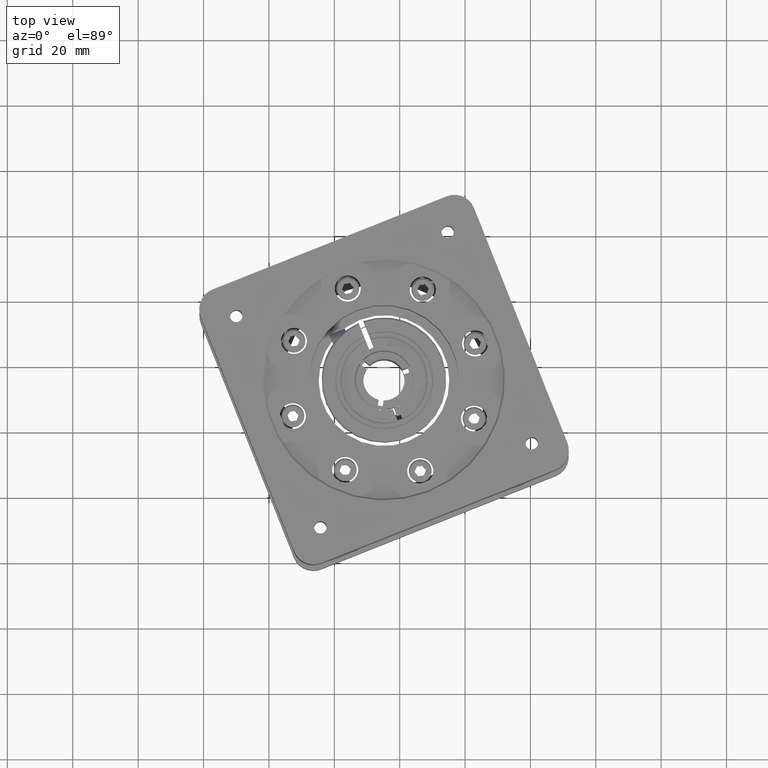
[diagram: clean part render]
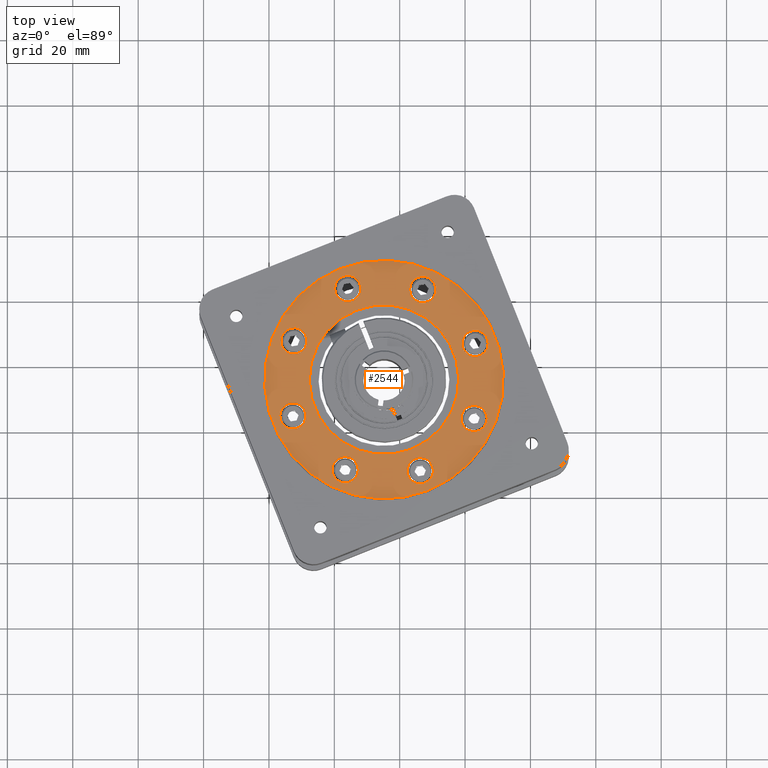
[diagram: same view with one face highlighted and labeled with its STEP entity id]
A machine part, top view. The second image highlights one B-rep face of the part: STEP entity #2544.
In plain terms, the highlighted planar face has unit normal (-0, -0, 1).
Its self-contained STEP definition (entity closure, byte-faithful):
#64 = EDGE_CURVE ( 'NONE', #227, #10395, #12125, .T. ) ;
#227 = VERTEX_POINT ( 'NONE', #8463 ) ;
#246 = AXIS2_PLACEMENT_3D ( 'NONE', #14789, #1947, #4537 ) ;
#326 = CIRCLE ( 'NONE', #3911, 4.000000000000006217 ) ;
#424 = EDGE_LOOP ( 'NONE', ( #6753, #2492 ) ) ;
#430 = CARTESIAN_POINT ( 'NONE',  ( -91.45046468432761344, 157.3930973248777434, 217.9211539304251346 ) ) ;
#552 = AXIS2_PLACEMENT_3D ( 'NONE', #9440, #13040, #1571 ) ;
#568 = FACE_BOUND ( 'NONE', #5611, .T. ) ;
#572 = EDGE_CURVE ( 'NONE', #2639, #10677, #4020, .T. ) ;
#640 = EDGE_LOOP ( 'NONE', ( #2324, #15058 ) ) ;
#655 = VERTEX_POINT ( 'NONE', #16750 ) ;
#795 = VERTEX_POINT ( 'NONE', #15965 ) ;
#1236 = AXIS2_PLACEMENT_3D ( 'NONE', #2752, #11647, #12814 ) ;
#1391 = EDGE_CURVE ( 'NONE', #10395, #227, #14289, .T. ) ;
#1456 = AXIS2_PLACEMENT_3D ( 'NONE', #2348, #7378, #11245 ) ;
#1553 = DIRECTION ( 'NONE',  ( -0.3696726045007524553, 0.9291620770789293937, 6.938893903907217334E-15 ) ) ;
#1571 = DIRECTION ( 'NONE',  ( -0.3696726045007494577, 0.9291620770789306150, 6.938893903907226800E-15 ) ) ;
#1716 = VERTEX_POINT ( 'NONE', #10949 ) ;
#1763 = DIRECTION ( 'NONE',  ( -0.3696726045007536210, 0.9291620770789288386, 6.938893903907240211E-15 ) ) ;
#1842 = CARTESIAN_POINT ( 'NONE',  ( -132.3501634337640098, 145.4258653055107402, 217.9211539304245093 ) ) ;
#1911 = VERTEX_POINT ( 'NONE', #430 ) ;
#1947 = DIRECTION ( 'NONE',  ( 1.245299915137200224E-14, 1.076898747066003711E-14, -1.000000000000000000 ) ) ;
#1968 = CARTESIAN_POINT ( 'NONE',  ( -132.6725814165737631, 122.4671231686127157, 217.9211539304242535 ) ) ;
#2034 = DIRECTION ( 'NONE',  ( -0.3696726045007524553, 0.9291620770789293937, 6.938893903907217334E-15 ) ) ;
#2324 = ORIENTED_EDGE ( 'NONE', *, *, #1391, .T. ) ;
#2348 = CARTESIAN_POINT ( 'NONE',  ( -115.8878972392286784, 161.4321636160033506, 217.9211539304248788 ) ) ;
#2379 = EDGE_LOOP ( 'NONE', ( #9900, #12763 ) ) ;
#2382 = CARTESIAN_POINT ( 'NONE',  ( -75.76658435664487001, 117.9720889934447854, 217.9211539304248788 ) ) ;
#2402 = FACE_BOUND ( 'NONE', #424, .T. ) ;
#2452 = VERTEX_POINT ( 'NONE', #16737 ) ;
#2492 = ORIENTED_EDGE ( 'NONE', *, *, #16320, .T. ) ;
#2514 = EDGE_CURVE ( 'NONE', #12157, #10826, #12515, .T. ) ;
#2518 = CIRCLE ( 'NONE', #2722, 22.86000000000001720 ) ;
#2544 = ADVANCED_FACE ( 'NONE', ( #12707, #4213, #8694, #14895, #15095, #14703, #5241, #6264, #568, #2402 ), #7820, .T. ) ;
#2639 = VERTEX_POINT ( 'NONE', #6923 ) ;
#2658 = CIRCLE ( 'NONE', #1456, 4.000000000000006217 ) ;
#2722 = AXIS2_PLACEMENT_3D ( 'NONE', #3219, #16058, #13383 ) ;
#2752 = CARTESIAN_POINT ( 'NONE',  ( -76.92285679183827085, 144.6474794386585074, 217.9211539304252199 ) ) ;
#2832 = ORIENTED_EDGE ( 'NONE', *, *, #7441, .T. ) ;
#2878 = ORIENTED_EDGE ( 'NONE', *, *, #8706, .T. ) ;
#2907 = VERTEX_POINT ( 'NONE', #2382 ) ;
#3051 = CARTESIAN_POINT ( 'NONE',  ( -116.6662831060813801, 106.0048569740774980, 217.9211539304242820 ) ) ;
#3219 = CARTESIAN_POINT ( 'NONE',  ( -104.7977191042059815, 133.5573013036354837, 217.9211539304247083 ) ) ;
#3293 = DIRECTION ( 'NONE',  ( -0.3696726045007536210, 0.9291620770789288386, 6.938893903907240211E-15 ) ) ;
#3349 = DIRECTION ( 'NONE',  ( -0.3696726045007524553, 0.9291620770789293937, 6.938893903907217334E-15 ) ) ;
#3417 = ORIENTED_EDGE ( 'NONE', *, *, #13237, .T. ) ;
#3602 = EDGE_CURVE ( 'NONE', #8655, #655, #11285, .T. ) ;
#3617 = CARTESIAN_POINT ( 'NONE',  ( -78.72396519265093673, 125.4053856100761948, 217.9211539304249357 ) ) ;
#3642 = EDGE_CURVE ( 'NONE', #10537, #795, #12076, .T. ) ;
#3911 = AXIS2_PLACEMENT_3D ( 'NONE', #12664, #8675, #11274 ) ;
#3916 = CARTESIAN_POINT ( 'NONE',  ( -93.70754096918308562, 105.6824389912677020, 217.9211539304245377 ) ) ;
#3938 = ORIENTED_EDGE ( 'NONE', *, *, #8653, .T. ) ;
#4020 = CIRCLE ( 'NONE', #16060, 4.000000000000000888 ) ;
#4098 = ORIENTED_EDGE ( 'NONE', *, *, #12728, .T. ) ;
#4201 = CARTESIAN_POINT ( 'NONE',  ( -77.24527477464792469, 121.6887373017604688, 217.9211539304249072 ) ) ;
#4205 = EDGE_CURVE ( 'NONE', #1716, #1911, #11668, .T. ) ;
#4213 = FACE_OUTER_BOUND ( 'NONE', #640, .T. ) ;
#4252 = EDGE_CURVE ( 'NONE', #10677, #2639, #14856, .T. ) ;
#4337 = AXIS2_PLACEMENT_3D ( 'NONE', #1842, #7160, #16034 ) ;
#4362 = AXIS2_PLACEMENT_3D ( 'NONE', #11082, #12520, #6040 ) ;
#4537 = DIRECTION ( 'NONE',  ( -0.3696726045007524553, 0.9291620770789293937, 6.938893903907217334E-15 ) ) ;
#4596 = AXIS2_PLACEMENT_3D ( 'NONE', #7148, #9774, #5972 ) ;
#4659 = EDGE_LOOP ( 'NONE', ( #4098, #3417 ) ) ;
#4729 = ORIENTED_EDGE ( 'NONE', *, *, #9372, .T. ) ;
#4976 = DIRECTION ( 'NONE',  ( -0.3696726045007532324, 0.9291620770789289496, 4.856618655403130666E-15 ) ) ;
#5019 = AXIS2_PLACEMENT_3D ( 'NONE', #16589, #11490, #10081 ) ;
#5102 = ORIENTED_EDGE ( 'NONE', *, *, #572, .T. ) ;
#5122 = AXIS2_PLACEMENT_3D ( 'NONE', #3051, #9523, #1763 ) ;
#5241 = FACE_BOUND ( 'NONE', #16285, .T. ) ;
#5611 = EDGE_LOOP ( 'NONE', ( #4729, #9020 ) ) ;
#5648 = CARTESIAN_POINT ( 'NONE',  ( -95.18623138718609766, 109.3990872995833996, 217.9211539304245662 ) ) ;
#5688 = EDGE_CURVE ( 'NONE', #8536, #8145, #2518, .T. ) ;
#5851 = AXIS2_PLACEMENT_3D ( 'NONE', #3916, #12955, #7530 ) ;
#5864 = AXIS2_PLACEMENT_3D ( 'NONE', #13496, #14818, #2034 ) ;
#5884 = CARTESIAN_POINT ( 'NONE',  ( -75.44416637383518776, 140.9308311303427956, 217.9211539304251914 ) ) ;
#5972 = DIRECTION ( 'NONE',  ( -0.3696726045007577843, 0.9291620770789272843, 6.938893903907253621E-15 ) ) ;
#5982 = DIRECTION ( 'NONE',  ( -0.3696726045007532324, 0.9291620770789290606, 5.321164787659085039E-15 ) ) ;
#5987 = VERTEX_POINT ( 'NONE', #6621 ) ;
#6040 = DIRECTION ( 'NONE',  ( -0.3696726045007524553, 0.9291620770789293937, 6.938893903907217334E-15 ) ) ;
#6264 = FACE_BOUND ( 'NONE', #2379, .T. ) ;
#6621 = CARTESIAN_POINT ( 'NONE',  ( -114.4092068212256663, 157.7155153076876388, 217.9211539304248504 ) ) ;
#6700 = CIRCLE ( 'NONE', #5019, 3.999999999999993339 ) ;
#6753 = ORIENTED_EDGE ( 'NONE', *, *, #4205, .T. ) ;
#6923 = CARTESIAN_POINT ( 'NONE',  ( -134.1512718345767610, 126.1837714769284418, 217.9211539304242820 ) ) ;
#6999 = CARTESIAN_POINT ( 'NONE',  ( -104.7977191042059815, 133.5573013036354837, 217.9211539304247083 ) ) ;
#7115 = EDGE_LOOP ( 'NONE', ( #2832, #14711 ) ) ;
#7148 = CARTESIAN_POINT ( 'NONE',  ( -132.6725814165737631, 122.4671231686127157, 217.9211539304242535 ) ) ;
#7160 = DIRECTION ( 'NONE',  ( 1.245299915137200224E-14, 1.076898747066003711E-14, -1.000000000000000000 ) ) ;
#7355 = CARTESIAN_POINT ( 'NONE',  ( -116.6662831060813801, 106.0048569740774980, 217.9211539304242820 ) ) ;
#7378 = DIRECTION ( 'NONE',  ( 1.245299915137200224E-14, 1.076898747066003711E-14, -1.000000000000000000 ) ) ;
#7441 = EDGE_CURVE ( 'NONE', #655, #8655, #9794, .T. ) ;
#7530 = DIRECTION ( 'NONE',  ( -0.3696726045007536210, 0.9291620770789288386, 6.938893903907240211E-15 ) ) ;
#7820 = PLANE ( 'NONE',  #14464 ) ;
#8045 = VERTEX_POINT ( 'NONE', #14056 ) ;
#8145 = VERTEX_POINT ( 'NONE', #11562 ) ;
#8463 = CARTESIAN_POINT ( 'NONE',  ( -91.30004813237223971, 99.63127096429110452, 217.9211539304245093 ) ) ;
#8536 = VERTEX_POINT ( 'NONE', #13548 ) ;
#8594 = DIRECTION ( 'NONE',  ( 1.245299915137200224E-14, 1.076898747066003711E-14, -1.000000000000000000 ) ) ;
#8653 = EDGE_CURVE ( 'NONE', #10826, #12157, #6700, .T. ) ;
#8655 = VERTEX_POINT ( 'NONE', #16471 ) ;
#8675 = DIRECTION ( 'NONE',  ( 1.245299915137200224E-14, 1.076898747066003711E-14, -1.000000000000000000 ) ) ;
#8694 = FACE_BOUND ( 'NONE', #9156, .T. ) ;
#8706 = EDGE_CURVE ( 'NONE', #795, #10537, #12545, .T. ) ;
#9020 = ORIENTED_EDGE ( 'NONE', *, *, #15389, .T. ) ;
#9139 = CIRCLE ( 'NONE', #15652, 22.86000000000001720 ) ;
#9156 = EDGE_LOOP ( 'NONE', ( #2878, #10880 ) ) ;
#9337 = CIRCLE ( 'NONE', #16068, 4.000000000000006217 ) ;
#9372 = EDGE_CURVE ( 'NONE', #2452, #5987, #2658, .T. ) ;
#9440 = CARTESIAN_POINT ( 'NONE',  ( -132.3501634337640098, 145.4258653055107402, 217.9211539304245093 ) ) ;
#9523 = DIRECTION ( 'NONE',  ( 1.245299915137200224E-14, 1.076898747066003711E-14, -1.000000000000000000 ) ) ;
#9650 = CIRCLE ( 'NONE', #4362, 4.000000000000006217 ) ;
#9749 = AXIS2_PLACEMENT_3D ( 'NONE', #6999, #15969, #12121 ) ;
#9774 = DIRECTION ( 'NONE',  ( 1.245299915137200224E-14, 1.076898747066003711E-14, -1.000000000000000000 ) ) ;
#9794 = CIRCLE ( 'NONE', #5122, 3.999999999999993339 ) ;
#9900 = ORIENTED_EDGE ( 'NONE', *, *, #16035, .T. ) ;
#9938 = DIRECTION ( 'NONE',  ( 1.245299915137200224E-14, 1.076898747066003711E-14, -1.000000000000000000 ) ) ;
#10081 = DIRECTION ( 'NONE',  ( -0.3696726045007536210, 0.9291620770789288386, 6.938893903907240211E-15 ) ) ;
#10099 = VERTEX_POINT ( 'NONE', #3617 ) ;
#10256 = AXIS2_PLACEMENT_3D ( 'NONE', #7355, #9938, #3293 ) ;
#10296 = ORIENTED_EDGE ( 'NONE', *, *, #5688, .F. ) ;
#10395 = VERTEX_POINT ( 'NONE', #15999 ) ;
#10537 = VERTEX_POINT ( 'NONE', #5884 ) ;
#10650 = EDGE_LOOP ( 'NONE', ( #10296, #11014 ) ) ;
#10677 = VERTEX_POINT ( 'NONE', #12929 ) ;
#10826 = VERTEX_POINT ( 'NONE', #5648 ) ;
#10863 = ORIENTED_EDGE ( 'NONE', *, *, #4252, .T. ) ;
#10880 = ORIENTED_EDGE ( 'NONE', *, *, #3642, .T. ) ;
#10949 = CARTESIAN_POINT ( 'NONE',  ( -94.40784552033366595, 164.8263939415091670, 217.9211539304251914 ) ) ;
#11006 = CARTESIAN_POINT ( 'NONE',  ( -76.92285679183827085, 144.6474794386585074, 217.9211539304252199 ) ) ;
#11014 = ORIENTED_EDGE ( 'NONE', *, *, #13023, .F. ) ;
#11082 = CARTESIAN_POINT ( 'NONE',  ( -92.92915510233065390, 161.1097456331934268, 217.9211539304251630 ) ) ;
#11117 = AXIS2_PLACEMENT_3D ( 'NONE', #11006, #13775, #3349 ) ;
#11245 = DIRECTION ( 'NONE',  ( -0.3696726045007524553, 0.9291620770789293937, 6.938893903907217334E-15 ) ) ;
#11274 = DIRECTION ( 'NONE',  ( -0.3696726045007524553, 0.9291620770789293937, 6.938893903907217334E-15 ) ) ;
#11285 = CIRCLE ( 'NONE', #10256, 3.999999999999993339 ) ;
#11490 = DIRECTION ( 'NONE',  ( 1.245299915137200224E-14, 1.076898747066003711E-14, -1.000000000000000000 ) ) ;
#11562 = CARTESIAN_POINT ( 'NONE',  ( -96.34700336531867038, 112.3166562216112112, 217.9211539304245946 ) ) ;
#11647 = DIRECTION ( 'NONE',  ( 1.245299915137200224E-14, 1.076898747066003711E-14, -1.000000000000000000 ) ) ;
#11668 = CIRCLE ( 'NONE', #246, 4.000000000000006217 ) ;
#11729 = CARTESIAN_POINT ( 'NONE',  ( -104.7977191042059815, 133.5573013036354837, 217.9211539304247083 ) ) ;
#11841 = DIRECTION ( 'NONE',  ( 1.245299915137200224E-14, 1.076898747066003711E-14, -1.000000000000000000 ) ) ;
#12051 = CIRCLE ( 'NONE', #552, 4.000000000000000888 ) ;
#12076 = CIRCLE ( 'NONE', #11117, 4.000000000000006217 ) ;
#12121 = DIRECTION ( 'NONE',  ( -0.3696726045007532324, 0.9291620770789290606, 5.321164787659085039E-15 ) ) ;
#12125 = CIRCLE ( 'NONE', #9749, 36.51250000000000995 ) ;
#12135 = CIRCLE ( 'NONE', #5864, 4.000000000000006217 ) ;
#12157 = VERTEX_POINT ( 'NONE', #14041 ) ;
#12515 = CIRCLE ( 'NONE', #5851, 3.999999999999993339 ) ;
#12520 = DIRECTION ( 'NONE',  ( 1.245299915137200224E-14, 1.076898747066003711E-14, -1.000000000000000000 ) ) ;
#12545 = CIRCLE ( 'NONE', #1236, 4.000000000000006217 ) ;
#12664 = CARTESIAN_POINT ( 'NONE',  ( -115.8878972392286784, 161.4321636160033506, 217.9211539304248788 ) ) ;
#12707 = FACE_BOUND ( 'NONE', #10650, .T. ) ;
#12728 = EDGE_CURVE ( 'NONE', #10099, #2907, #9337, .T. ) ;
#12763 = ORIENTED_EDGE ( 'NONE', *, *, #14621, .T. ) ;
#12814 = DIRECTION ( 'NONE',  ( -0.3696726045007524553, 0.9291620770789293937, 6.938893903907217334E-15 ) ) ;
#12833 = DIRECTION ( 'NONE',  ( -1.245299915137200224E-14, -1.076898747066003711E-14, 1.000000000000000000 ) ) ;
#12929 = CARTESIAN_POINT ( 'NONE',  ( -131.1938909985707653, 118.7504748602969897, 217.9211539304242251 ) ) ;
#12955 = DIRECTION ( 'NONE',  ( 1.245299915137200224E-14, 1.076898747066003711E-14, -1.000000000000000000 ) ) ;
#13023 = EDGE_CURVE ( 'NONE', #8145, #8536, #9139, .T. ) ;
#13040 = DIRECTION ( 'NONE',  ( 1.245299915137200224E-14, 1.076898747066003711E-14, -1.000000000000000000 ) ) ;
#13237 = EDGE_CURVE ( 'NONE', #2907, #10099, #12135, .T. ) ;
#13383 = DIRECTION ( 'NONE',  ( -0.3696726045007532324, 0.9291620770789289496, 4.856618655403130666E-15 ) ) ;
#13496 = CARTESIAN_POINT ( 'NONE',  ( -77.24527477464792469, 121.6887373017604688, 217.9211539304249072 ) ) ;
#13548 = CARTESIAN_POINT ( 'NONE',  ( -113.2484348430932073, 154.7979463856598272, 217.9211539304248220 ) ) ;
#13626 = ORIENTED_EDGE ( 'NONE', *, *, #2514, .T. ) ;
#13699 = DIRECTION ( 'NONE',  ( -0.3696726045007494577, 0.9291620770789306150, 6.938893903907226800E-15 ) ) ;
#13775 = DIRECTION ( 'NONE',  ( 1.245299915137200224E-14, 1.076898747066003711E-14, -1.000000000000000000 ) ) ;
#13999 = EDGE_LOOP ( 'NONE', ( #3938, #13626 ) ) ;
#14041 = CARTESIAN_POINT ( 'NONE',  ( -92.22885055117997410, 101.9657906829520329, 217.9211539304245093 ) ) ;
#14056 = CARTESIAN_POINT ( 'NONE',  ( -133.8288538517670077, 149.1425136138264520, 217.9211539304245377 ) ) ;
#14106 = CARTESIAN_POINT ( 'NONE',  ( -104.7977191042059815, 133.5573013036354837, 217.9211539304247083 ) ) ;
#14239 = DIRECTION ( 'NONE',  ( -1.245299915137308929E-14, -1.076898747065730449E-14, 1.000000000000000000 ) ) ;
#14250 = AXIS2_PLACEMENT_3D ( 'NONE', #16342, #15117, #5982 ) ;
#14288 = DIRECTION ( 'NONE',  ( -0.3696726045007531769, 0.9291620770789291717, 5.402602136139144610E-15 ) ) ;
#14289 = CIRCLE ( 'NONE', #14250, 36.51250000000000995 ) ;
#14464 = AXIS2_PLACEMENT_3D ( 'NONE', #11729, #14239, #14288 ) ;
#14487 = CIRCLE ( 'NONE', #4337, 3.999999999999985345 ) ;
#14621 = EDGE_CURVE ( 'NONE', #16358, #8045, #14487, .T. ) ;
#14703 = FACE_BOUND ( 'NONE', #7115, .T. ) ;
#14711 = ORIENTED_EDGE ( 'NONE', *, *, #3602, .T. ) ;
#14789 = CARTESIAN_POINT ( 'NONE',  ( -92.92915510233065390, 161.1097456331934268, 217.9211539304251630 ) ) ;
#14818 = DIRECTION ( 'NONE',  ( 1.245299915137200224E-14, 1.076898747066003711E-14, -1.000000000000000000 ) ) ;
#14856 = CIRCLE ( 'NONE', #4596, 3.999999999999985345 ) ;
#14859 = CARTESIAN_POINT ( 'NONE',  ( -130.8714730157609267, 141.7092169971950568, 217.9211539304244809 ) ) ;
#14895 = FACE_BOUND ( 'NONE', #4659, .T. ) ;
#15058 = ORIENTED_EDGE ( 'NONE', *, *, #64, .T. ) ;
#15095 = FACE_BOUND ( 'NONE', #13999, .T. ) ;
#15117 = DIRECTION ( 'NONE',  ( -1.245299915137200224E-14, -1.076898747066003711E-14, 1.000000000000000000 ) ) ;
#15389 = EDGE_CURVE ( 'NONE', #5987, #2452, #326, .T. ) ;
#15652 = AXIS2_PLACEMENT_3D ( 'NONE', #14106, #12833, #4976 ) ;
#15965 = CARTESIAN_POINT ( 'NONE',  ( -78.40154720984128289, 148.3641277469742192, 217.9211539304252483 ) ) ;
#15969 = DIRECTION ( 'NONE',  ( -1.245299915137200224E-14, -1.076898747066003711E-14, 1.000000000000000000 ) ) ;
#15999 = CARTESIAN_POINT ( 'NONE',  ( -118.2953900760397232, 167.4833316429798913, 217.9211539304249072 ) ) ;
#16034 = DIRECTION ( 'NONE',  ( -0.3696726045007577843, 0.9291620770789272843, 6.938893903907253621E-15 ) ) ;
#16035 = EDGE_CURVE ( 'NONE', #8045, #16358, #12051, .T. ) ;
#16058 = DIRECTION ( 'NONE',  ( -1.245299915137200224E-14, -1.076898747066003711E-14, 1.000000000000000000 ) ) ;
#16060 = AXIS2_PLACEMENT_3D ( 'NONE', #1968, #8594, #13699 ) ;
#16068 = AXIS2_PLACEMENT_3D ( 'NONE', #4201, #11841, #1553 ) ;
#16285 = EDGE_LOOP ( 'NONE', ( #5102, #10863 ) ) ;
#16320 = EDGE_CURVE ( 'NONE', #1911, #1716, #9650, .T. ) ;
#16342 = CARTESIAN_POINT ( 'NONE',  ( -104.7977191042059815, 133.5573013036354837, 217.9211539304247083 ) ) ;
#16358 = VERTEX_POINT ( 'NONE', #14859 ) ;
#16471 = CARTESIAN_POINT ( 'NONE',  ( -115.1875926880782401, 102.2882086657618288, 217.9211539304242535 ) ) ;
#16589 = CARTESIAN_POINT ( 'NONE',  ( -93.70754096918308562, 105.6824389912677020, 217.9211539304245377 ) ) ;
#16737 = CARTESIAN_POINT ( 'NONE',  ( -117.3665876572316904, 165.1488119243190624, 217.9211539304249072 ) ) ;
#16750 = CARTESIAN_POINT ( 'NONE',  ( -118.1449735240843921, 109.7215052823932098, 217.9211539304243104 ) ) ;